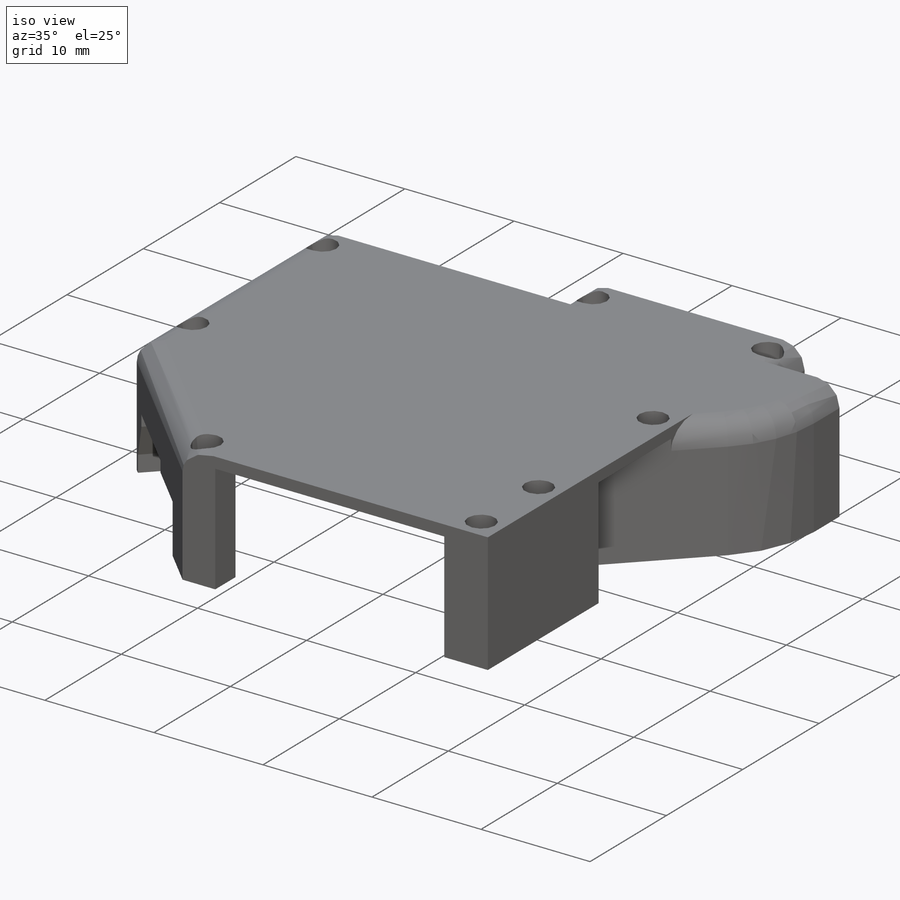
[diagram: iso view]
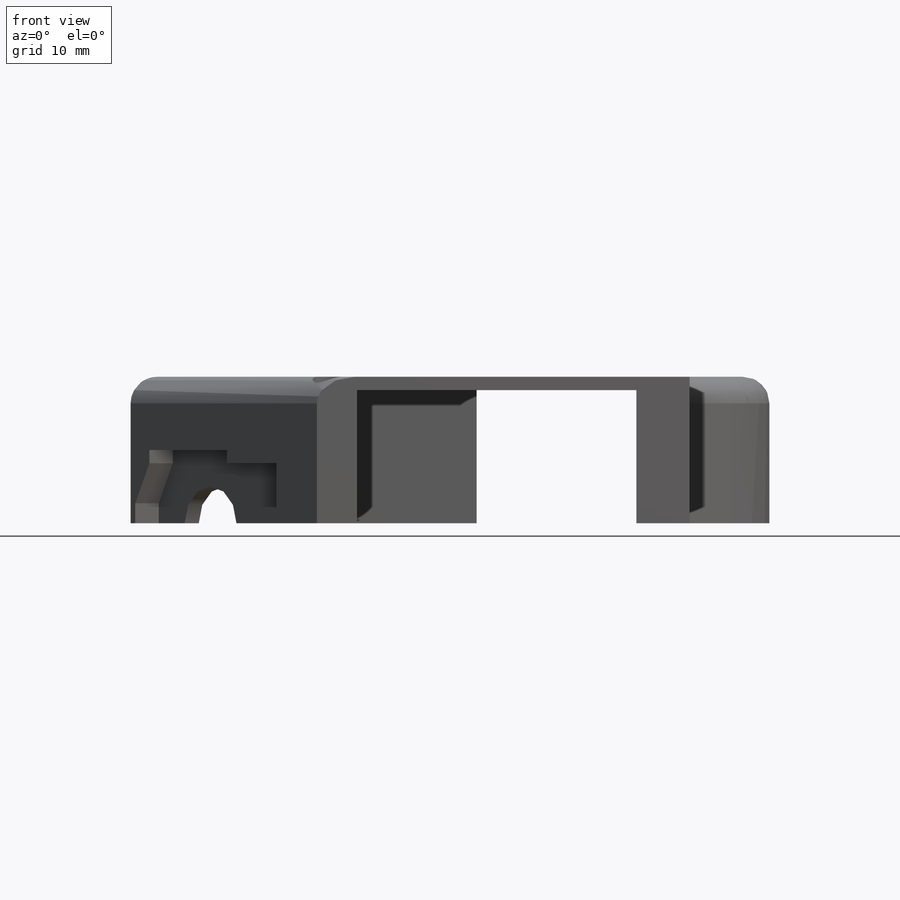
[diagram: front view]
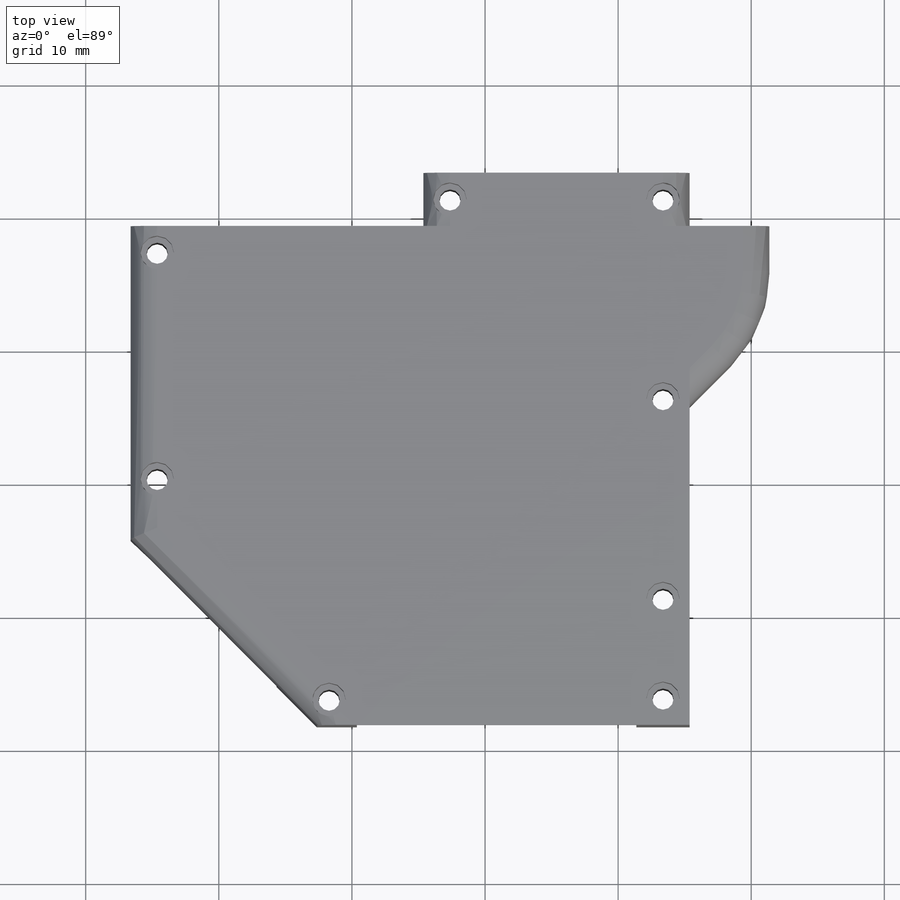
[diagram: top view]
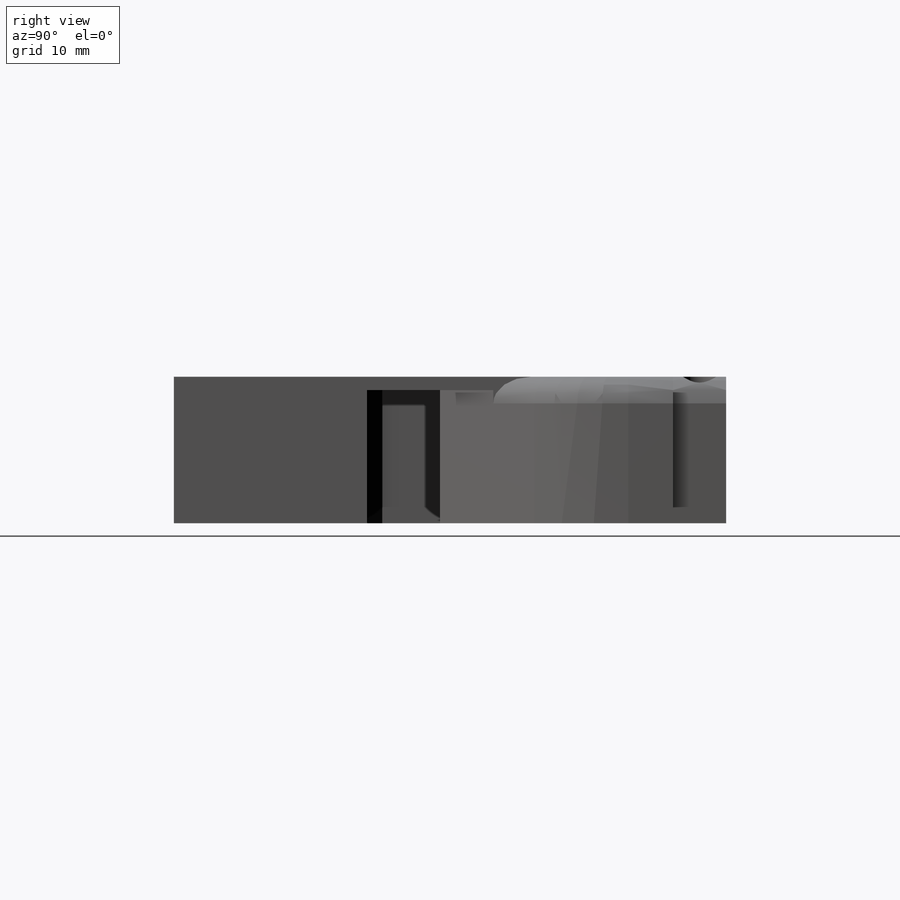
[diagram: right view]
SOLIDWORKS PART (.sldprt)
format: sldprt  version: not decoded by parser v0  size: 497,152 bytes
history: native  units: mm
features: sketch x8, cut_extrude x5, extrude x3, fillet x2, material x1 (+16 scaffold rows collapsed; 3 parser-record rows omitted)
feature tree (38):
  scaffold x16  (default folders/planes/origin — collapsed)
  material  "Material <not specified>"
  parser-record x3  (decoder bookkeeping rows leaked as tree rows — omitted from the tree; the rows remain in map.json)
  sketch  "Sketch3"  dims[D1=1.0mm]
  extrude  "Boss-Extrude2"  Depth=11mm
  sketch  "Sketch5"  dims[D1=24.0mm]
  extrude  "Boss-Extrude3"  Depth=1mm
  fillet  "Fillet2"  Radius=10mm
  fillet  "Fillet1"  Radius=2mm
  sketch  "Sketch14"  dims[D1=2.0mm]
  extrude  "Boss-Extrude4"  Depth=11mm
  sketch  "Sketch7"  dims[D1=2.0mm]
  sketch  "Sketch10"  dims[D1=~13.843146mm]
  cut_extrude  "Tube Holes"  Depth=10mm
  sketch  "Sketch9"  dims[D1=6.0mm]
  cut_extrude  "Pot Insert"  Depth=2.5mm
  sketch  "Sketch13"  dims[D1=2.5mm]
  cut_extrude  "Pot Hole"  Depth=1.5mm
  cut_extrude  "Screw Holes"  [1 undecoded]
  sketch  "Sketch12"  dims[D1=2.5mm]
  cut_extrude  "Screw Heads"  Depth=3mm
decode coverage: 17 of 18 modeling features carry decoded parameters
note: ~ marks probable driven/reference dimensions
note: 1 parameter value undecoded
note: suppression state not decoded; provenance and decode notes live in map.json
